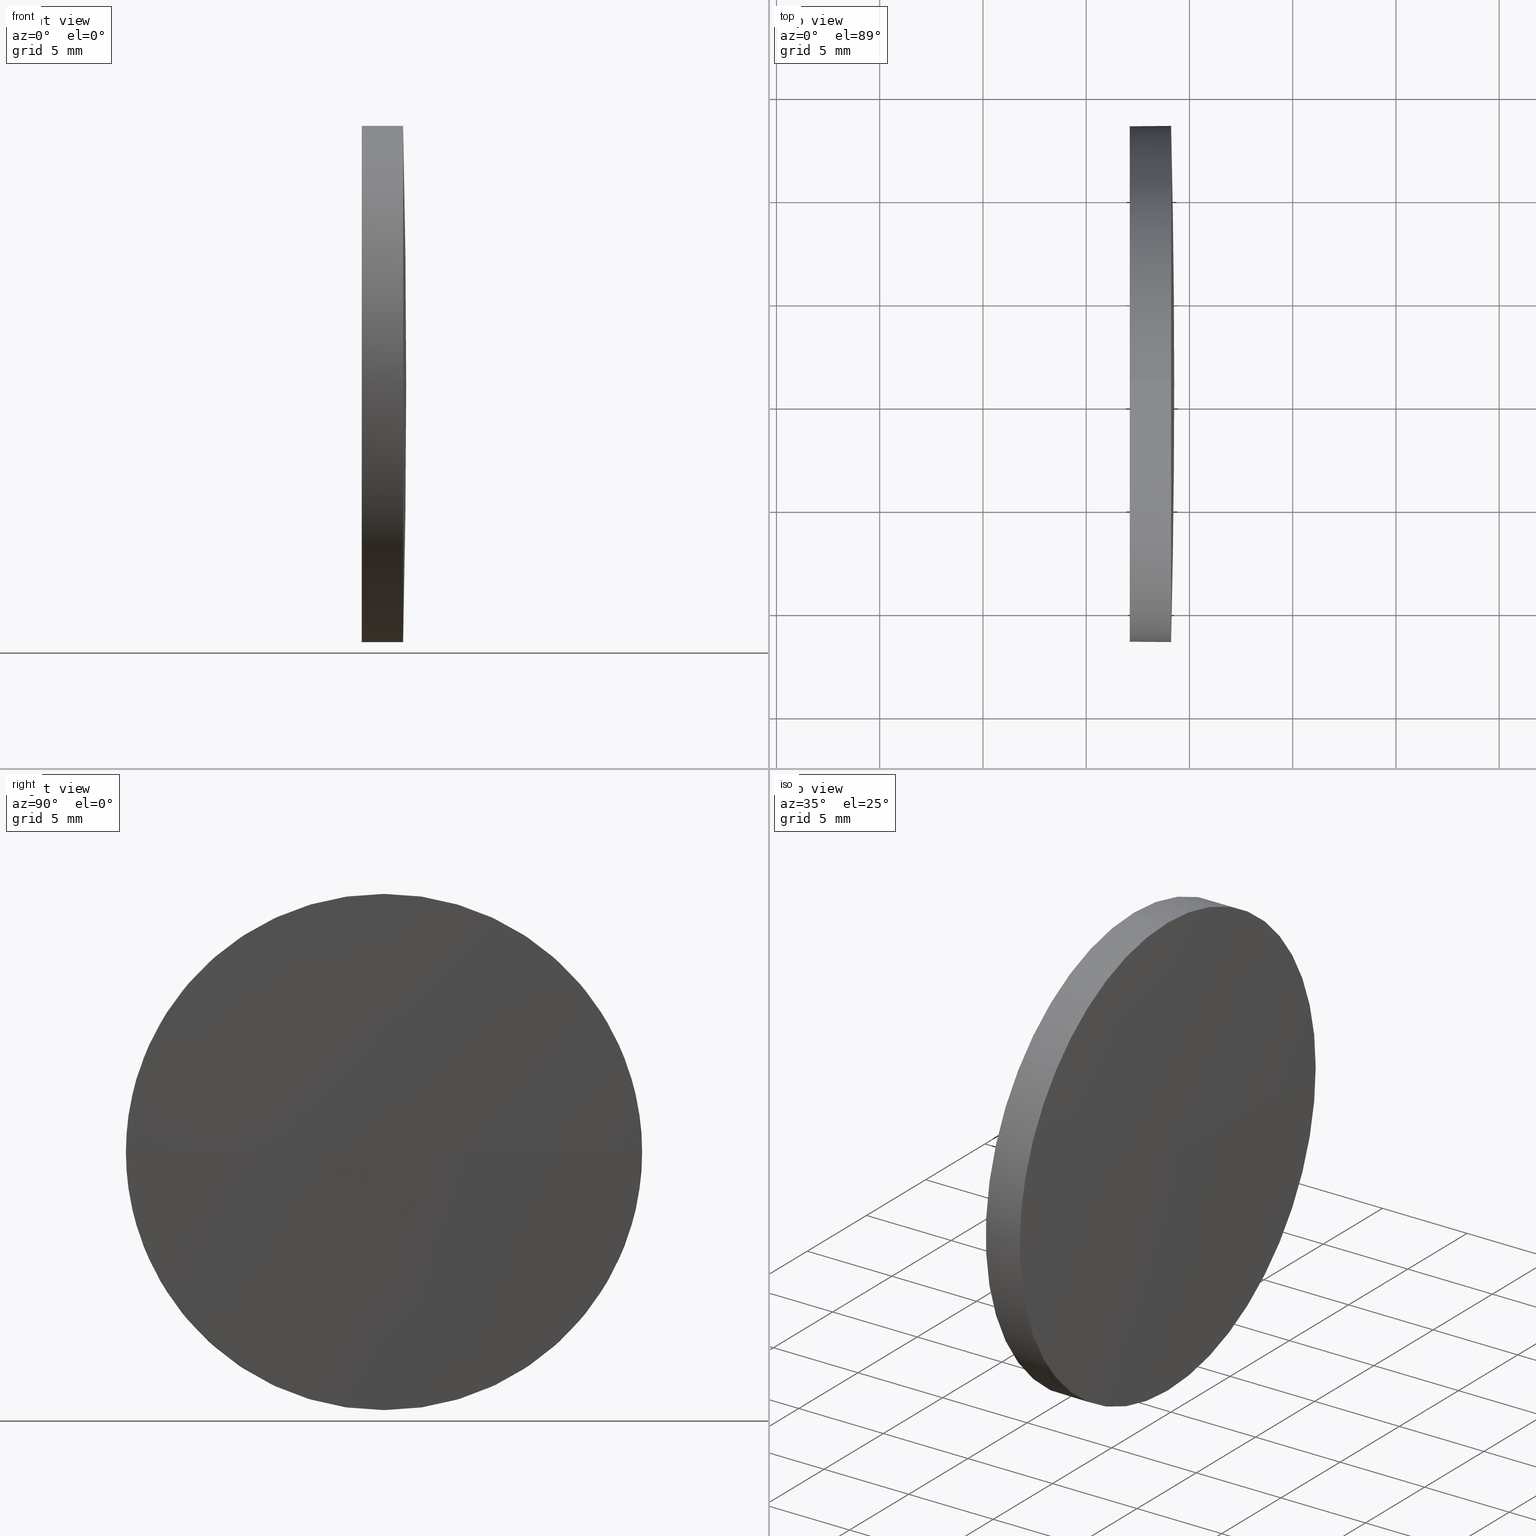
[diagram: canonical four-view strip — front | top / right | iso, engineering-drawing reading convention]
A machine part, canonical four-view strip (front | top / right | iso — engineering-drawing reading convention). The complete STEP part file that produces these views, byte-faithful:
ISO-10303-21;
HEADER;
FILE_DESCRIPTION (( 'STEP AP214' ),
    '1' );
FILE_NAME ('100140.STEP',
    '2019-05-15T05:31:38',
    ( '' ),
    ( '' ),
    'SwSTEP 2.0',
    'SolidWorks 2016',
    '' );
FILE_SCHEMA (( 'AUTOMOTIVE_DESIGN' ));
ENDSEC;

DATA;
#1 = PRESENTATION_STYLE_ASSIGNMENT (( #94 ) ) ;
#2 = DIRECTION ( 'NONE',  ( -1.000000000000000000, -0.0000000000000000000, -0.0000000000000000000 ) ) ;
#3 = AXIS2_PLACEMENT_3D ( 'NONE', #17, #56, #87 ) ;
#4 = PLANE ( 'NONE',  #3 ) ;
#5 =( NAMED_UNIT ( * ) PLANE_ANGLE_UNIT ( ) SI_UNIT ( $, .RADIAN. ) );
#6 = CYLINDRICAL_SURFACE ( 'NONE', #29, 12.50000000000000400 ) ;
#7 = ORIENTED_EDGE ( 'NONE', *, *, #98, .F. ) ;
#8 = DIRECTION ( 'NONE',  ( 0.0000000000000000000, 1.000000000000000000, 0.0000000000000000000 ) ) ;
#9 = CIRCLE ( 'NONE', #25, 12.50000000000000400 ) ;
#10 = VERTEX_POINT ( 'NONE', #57 ) ;
#11 = AXIS2_PLACEMENT_3D ( 'NONE', #118, #175, #129 ) ;
#12 = PRESENTATION_LAYER_ASSIGNMENT (  '', '', ( #135 ) ) ;
#13 = FACE_OUTER_BOUND ( 'NONE', #14, .T. ) ;
#14 = EDGE_LOOP ( 'NONE', ( #101, #180 ) ) ;
#15 = FACE_OUTER_BOUND ( 'NONE', #60, .T. ) ;
#16 = SURFACE_SIDE_STYLE ('',( #106 ) ) ;
#17 = CARTESIAN_POINT ( 'NONE',  ( 462.1129067286656200, 60.99120596055025300, 0.0000000000000000000 ) ) ;
#18 = ORIENTED_EDGE ( 'NONE', *, *, #51, .F. ) ;
#19 = CARTESIAN_POINT ( 'NONE',  ( -56.64542660467248000, 60.99120596054969900, 0.0000000000000000000 ) ) ;
#20 = CARTESIAN_POINT ( 'NONE',  ( 459.7472908259046600, 60.99120596055025300, 12.50000000000000400 ) ) ;
#21 = CARTESIAN_POINT ( 'NONE',  ( 464.1129067286656200, 60.99120596055025300, -12.50000000000000400 ) ) ;
#22 = APPLICATION_CONTEXT ( 'automotive_design' ) ;
#23 = EDGE_CURVE ( 'NONE', #31, #108, #174, .T. ) ;
#24 = FACE_OUTER_BOUND ( 'NONE', #111, .T. ) ;
#25 = AXIS2_PLACEMENT_3D ( 'NONE', #128, #161, #74 ) ;
#26 = UNCERTAINTY_MEASURE_WITH_UNIT (LENGTH_MEASURE( 1.000000000000000100E-005 ), #32, 'distance_accuracy_value', 'NONE');
#27 = ORIENTED_EDGE ( 'NONE', *, *, #61, .T. ) ;
#28 = DIRECTION ( 'NONE',  ( 0.0000000000000000000, 0.0000000000000000000, 1.000000000000000000 ) ) ;
#29 = AXIS2_PLACEMENT_3D ( 'NONE', #127, #130, #28 ) ;
#30 = DIRECTION ( 'NONE',  ( -0.0000000000000000000, 0.0000000000000000000, 1.000000000000000000 ) ) ;
#31 = VERTEX_POINT ( 'NONE', #115 ) ;
#32 =( LENGTH_UNIT ( ) NAMED_UNIT ( * ) SI_UNIT ( .MILLI., .METRE. ) );
#33 = CARTESIAN_POINT ( 'NONE',  ( 464.1129067286656200, 60.99120596055025300, 12.50000000000000400 ) ) ;
#34 = APPLICATION_CONTEXT ( 'automotive_design' ) ;
#35 = SURFACE_SIDE_STYLE ('',( #124 ) ) ;
#36 = DIRECTION ( 'NONE',  ( 1.000000000000000000, 0.0000000000000000000, 0.0000000000000000000 ) ) ;
#37 = VERTEX_POINT ( 'NONE', #73 ) ;
#38 = ADVANCED_FACE ( 'NONE', ( #54 ), #66, .T. ) ;
#39 = ORIENTED_EDGE ( 'NONE', *, *, #167, .T. ) ;
#40 = AXIS2_PLACEMENT_3D ( 'NONE', #164, #90, #121 ) ;
#41 = MECHANICAL_DESIGN_GEOMETRIC_PRESENTATION_REPRESENTATION (  '', ( #135 ), #185 ) ;
#42 = DIRECTION ( 'NONE',  ( 0.0000000000000000000, 1.224646799147353200E-016, -1.000000000000000000 ) ) ;
#43 = CIRCLE ( 'NONE', #93, 520.9083333333380800 ) ;
#44 = FILL_AREA_STYLE_COLOUR ( '', #157 ) ;
#45 = PRODUCT_DEFINITION_CONTEXT ( 'detailed design', #34, 'design' ) ;
#46 = DIRECTION ( 'NONE',  ( -1.000000000000000000, -0.0000000000000000000, -0.0000000000000000000 ) ) ;
#47 = CIRCLE ( 'NONE', #181, 12.50000000000000400 ) ;
#48 = DIRECTION ( 'NONE',  ( 0.0000000000000000000, 0.0000000000000000000, 1.000000000000000000 ) ) ;
#49 = CARTESIAN_POINT ( 'NONE',  ( 0.0000000000000000000, 0.0000000000000000000, 0.0000000000000000000 ) ) ;
#50 = MANIFOLD_SOLID_BREP ( '��ת1', #67 ) ;
#51 = EDGE_CURVE ( 'NONE', #108, #152, #47, .T. ) ;
#52 = VECTOR ( 'NONE', #46, 1000.000000000000000 ) ;
#53 = VECTOR ( 'NONE', #162, 1000.000000000000000 ) ;
#54 = FACE_OUTER_BOUND ( 'NONE', #155, .T. ) ;
#55 = AXIS2_PLACEMENT_3D ( 'NONE', #100, #99, #172 ) ;
#56 = DIRECTION ( 'NONE',  ( 1.000000000000000000, 0.0000000000000000000, 0.0000000000000000000 ) ) ;
#57 = CARTESIAN_POINT ( 'NONE',  ( 464.1129067286656200, 73.49120596054936500, 0.0000000000000000000 ) ) ;
#58 = CARTESIAN_POINT ( 'NONE',  ( 462.1129067286656200, 60.99120596055025300, -12.50000000000000400 ) ) ;
#59 = CARTESIAN_POINT ( 'NONE',  ( 464.1129067286656200, 48.49120596055059500, -1.530808498934081900E-015 ) ) ;
#60 = EDGE_LOOP ( 'NONE', ( #39, #163, #95, #123, #80 ) ) ;
#61 = EDGE_CURVE ( 'NONE', #31, #10, #43, .T. ) ;
#62 = DIRECTION ( 'NONE',  ( -0.0000000000000000000, 0.0000000000000000000, -1.000000000000000000 ) ) ;
#63 = DIRECTION ( 'NONE',  ( 0.0000000000000000000, 0.0000000000000000000, 1.000000000000000000 ) ) ;
#64 = APPLICATION_PROTOCOL_DEFINITION ( 'draft international standard', 'automotive_design', 1998, #22 ) ;
#65 =( NAMED_UNIT ( * ) PLANE_ANGLE_UNIT ( ) SI_UNIT ( $, .RADIAN. ) );
#66 = SPHERICAL_SURFACE ( 'NONE', #55, 520.9083333333380800 ) ;
#67 = CLOSED_SHELL ( 'NONE', ( #125, #154, #38, #70, #84 ) ) ;
#68 = CIRCLE ( 'NONE', #40, 12.50000000000000400 ) ;
#69 = PRODUCT_DEFINITION_SHAPE ( 'NONE', 'NONE',  #116 ) ;
#70 = ADVANCED_FACE ( 'NONE', ( #24 ), #6, .T. ) ;
#71 = CARTESIAN_POINT ( 'NONE',  ( 459.7472908259046600, 60.99120596055025300, -12.50000000000000400 ) ) ;
#72 = ORIENTED_EDGE ( 'NONE', *, *, #167, .F. ) ;
#73 = CARTESIAN_POINT ( 'NONE',  ( 462.1129067286656200, 60.99120596055025300, 12.50000000000000400 ) ) ;
#74 = DIRECTION ( 'NONE',  ( 0.0000000000000000000, 0.0000000000000000000, 1.000000000000000000 ) ) ;
#75 = PRODUCT_CONTEXT ( 'NONE', #22, 'mechanical' ) ;
#76 = CARTESIAN_POINT ( 'NONE',  ( 462.1129067286656200, 60.99120596055025300, 0.0000000000000000000 ) ) ;
#77 = DIRECTION ( 'NONE',  ( 0.0000000000000000000, 0.0000000000000000000, 1.000000000000000000 ) ) ;
#78 = AXIS2_PLACEMENT_3D ( 'NONE', #49, #146, #36 ) ;
#79 = LINE ( 'NONE', #71, #52 ) ;
#80 = ORIENTED_EDGE ( 'NONE', *, *, #81, .T. ) ;
#81 = EDGE_CURVE ( 'NONE', #152, #10, #156, .T. ) ;
#82 = ORIENTED_EDGE ( 'NONE', *, *, #89, .F. ) ;
#83 = SHAPE_DEFINITION_REPRESENTATION ( #69, #126 ) ;
#84 = ADVANCED_FACE ( 'NONE', ( #13 ), #4, .F. ) ;
#85 =( NAMED_UNIT ( * ) SI_UNIT ( $, .STERADIAN. ) SOLID_ANGLE_UNIT ( ) );
#86 = AXIS2_PLACEMENT_3D ( 'NONE', #76, #178, #77 ) ;
#87 = DIRECTION ( 'NONE',  ( 0.0000000000000000000, 0.0000000000000000000, -1.000000000000000000 ) ) ;
#88 = APPLICATION_PROTOCOL_DEFINITION ( 'draft international standard', 'automotive_design', 1998, #34 ) ;
#89 = EDGE_CURVE ( 'NONE', #141, #114, #79, .T. ) ;
#90 = DIRECTION ( 'NONE',  ( -1.000000000000000000, -0.0000000000000000000, -0.0000000000000000000 ) ) ;
#91 = DIRECTION ( 'NONE',  ( -1.000000000000000000, -0.0000000000000000000, -0.0000000000000000000 ) ) ;
#92 = COLOUR_RGB ( '',1.000000000000000000, 1.000000000000000000, 1.000000000000000000 ) ;
#93 = AXIS2_PLACEMENT_3D ( 'NONE', #19, #30, #173 ) ;
#94 = SURFACE_STYLE_USAGE ( .BOTH. , #35 ) ;
#95 = ORIENTED_EDGE ( 'NONE', *, *, #120, .F. ) ;
#96 = FACE_OUTER_BOUND ( 'NONE', #142, .T. ) ;
#97 = AXIS2_PLACEMENT_3D ( 'NONE', #136, #91, #48 ) ;
#98 = EDGE_CURVE ( 'NONE', #141, #108, #9, .T. ) ;
#99 = DIRECTION ( 'NONE',  ( -0.0000000000000000000, 0.0000000000000000000, -1.000000000000000000 ) ) ;
#100 = CARTESIAN_POINT ( 'NONE',  ( -56.64542660467248000, 60.99120596054969900, 0.0000000000000000000 ) ) ;
#101 = ORIENTED_EDGE ( 'NONE', *, *, #120, .T. ) ;
#102 = FILL_AREA_STYLE ('',( #149 ) ) ;
#103 = CARTESIAN_POINT ( 'NONE',  ( -56.64542660467248000, 60.99120596054969900, 0.0000000000000000000 ) ) ;
#104 =( NAMED_UNIT ( * ) SI_UNIT ( $, .STERADIAN. ) SOLID_ANGLE_UNIT ( ) );
#105 =( NAMED_UNIT ( * ) PLANE_ANGLE_UNIT ( ) SI_UNIT ( $, .RADIAN. ) );
#106 = SURFACE_STYLE_FILL_AREA ( #143 ) ;
#107 = PRESENTATION_LAYER_ASSIGNMENT (  '', '', ( #137 ) ) ;
#108 = VERTEX_POINT ( 'NONE', #59 ) ;
#109 = AXIS2_PLACEMENT_3D ( 'NONE', #133, #62, #8 ) ;
#110 = EDGE_CURVE ( 'NONE', #114, #37, #68, .T. ) ;
#111 = EDGE_LOOP ( 'NONE', ( #82, #131, #140, #112, #184 ) ) ;
#112 = ORIENTED_EDGE ( 'NONE', *, *, #179, .T. ) ;
#113 = CARTESIAN_POINT ( 'NONE',  ( 464.1129067286656200, 60.99120596055025300, 0.0000000000000000000 ) ) ;
#114 = VERTEX_POINT ( 'NONE', #58 ) ;
#115 = CARTESIAN_POINT ( 'NONE',  ( 464.2629067286656000, 60.99120596054973500, 0.0000000000000000000 ) ) ;
#116 = PRODUCT_DEFINITION ( 'δ֪', '', #145, #45 ) ;
#117 = CIRCLE ( 'NONE', #97, 12.50000000000000400 ) ;
#118 = CARTESIAN_POINT ( 'NONE',  ( 464.1129067286656200, 60.99120596055025300, 0.0000000000000000000 ) ) ;
#119 = ORIENTED_EDGE ( 'NONE', *, *, #81, .F. ) ;
#120 = EDGE_CURVE ( 'NONE', #37, #114, #165, .T. ) ;
#121 = DIRECTION ( 'NONE',  ( 0.0000000000000000000, 0.0000000000000000000, 1.000000000000000000 ) ) ;
#122 =( LENGTH_UNIT ( ) NAMED_UNIT ( * ) SI_UNIT ( .MILLI., .METRE. ) );
#123 = ORIENTED_EDGE ( 'NONE', *, *, #179, .F. ) ;
#124 = SURFACE_STYLE_FILL_AREA ( #102 ) ;
#125 = ADVANCED_FACE ( 'NONE', ( #15 ), #139, .T. ) ;
#126 = ADVANCED_BREP_SHAPE_REPRESENTATION ( '100140', ( #50, #78 ), #132 ) ;
#127 = CARTESIAN_POINT ( 'NONE',  ( 459.7472908259046600, 60.99120596055025300, 0.0000000000000000000 ) ) ;
#128 = CARTESIAN_POINT ( 'NONE',  ( 464.1129067286656200, 60.99120596055025300, 0.0000000000000000000 ) ) ;
#129 = DIRECTION ( 'NONE',  ( 0.0000000000000000000, 0.0000000000000000000, 1.000000000000000000 ) ) ;
#130 = DIRECTION ( 'NONE',  ( -1.000000000000000000, -0.0000000000000000000, -0.0000000000000000000 ) ) ;
#131 = ORIENTED_EDGE ( 'NONE', *, *, #98, .T. ) ;
#132 =( GEOMETRIC_REPRESENTATION_CONTEXT ( 3 ) GLOBAL_UNCERTAINTY_ASSIGNED_CONTEXT ( ( #171 ) ) GLOBAL_UNIT_ASSIGNED_CONTEXT ( ( #144, #65, #104 ) ) REPRESENTATION_CONTEXT ( 'NONE', 'WORKASPACE' ) );
#133 = CARTESIAN_POINT ( 'NONE',  ( -56.64542660467248000, 60.99120596054969900, 0.0000000000000000000 ) ) ;
#134 = DIRECTION ( 'NONE',  ( -1.000000000000000000, -0.0000000000000000000, -0.0000000000000000000 ) ) ;
#135 = STYLED_ITEM ( 'NONE', ( #138 ), #50 ) ;
#136 = CARTESIAN_POINT ( 'NONE',  ( 464.1129067286656200, 60.99120596055025300, 0.0000000000000000000 ) ) ;
#137 = STYLED_ITEM ( 'NONE', ( #1 ), #126 ) ;
#138 = PRESENTATION_STYLE_ASSIGNMENT (( #160 ) ) ;
#139 = CYLINDRICAL_SURFACE ( 'NONE', #177, 12.50000000000000400 ) ;
#140 = ORIENTED_EDGE ( 'NONE', *, *, #51, .T. ) ;
#141 = VERTEX_POINT ( 'NONE', #21 ) ;
#142 = EDGE_LOOP ( 'NONE', ( #150, #182, #7, #72 ) ) ;
#143 = FILL_AREA_STYLE ('',( #44 ) ) ;
#144 =( LENGTH_UNIT ( ) NAMED_UNIT ( * ) SI_UNIT ( .MILLI., .METRE. ) );
#145 = PRODUCT_DEFINITION_FORMATION_WITH_SPECIFIED_SOURCE ( '�κ�', '', #169, .NOT_KNOWN. ) ;
#146 = DIRECTION ( 'NONE',  ( 0.0000000000000000000, 0.0000000000000000000, 1.000000000000000000 ) ) ;
#147 = CARTESIAN_POINT ( 'NONE',  ( 459.7472908259046600, 60.99120596055025300, 0.0000000000000000000 ) ) ;
#148 =( NAMED_UNIT ( * ) SI_UNIT ( $, .STERADIAN. ) SOLID_ANGLE_UNIT ( ) );
#149 = FILL_AREA_STYLE_COLOUR ( '', #92 ) ;
#150 = ORIENTED_EDGE ( 'NONE', *, *, #61, .F. ) ;
#151 = SPHERICAL_SURFACE ( 'NONE', #109, 520.9083333333380800 ) ;
#152 = VERTEX_POINT ( 'NONE', #33 ) ;
#153 = UNCERTAINTY_MEASURE_WITH_UNIT (LENGTH_MEASURE( 1.000000000000000100E-005 ), #122, 'distance_accuracy_value', 'NONE');
#154 = ADVANCED_FACE ( 'NONE', ( #96 ), #151, .T. ) ;
#155 = EDGE_LOOP ( 'NONE', ( #166, #27, #119, #18 ) ) ;
#156 = CIRCLE ( 'NONE', #11, 12.50000000000000400 ) ;
#157 = COLOUR_RGB ( '',1.000000000000000000, 1.000000000000000000, 1.000000000000000000 ) ;
#158 = AXIS2_PLACEMENT_3D ( 'NONE', #103, #42, #159 ) ;
#159 = DIRECTION ( 'NONE',  ( 0.0000000000000000000, 1.000000000000000000, 1.224646799147353200E-016 ) ) ;
#160 = SURFACE_STYLE_USAGE ( .BOTH. , #16 ) ;
#161 = DIRECTION ( 'NONE',  ( -1.000000000000000000, -0.0000000000000000000, -0.0000000000000000000 ) ) ;
#162 = DIRECTION ( 'NONE',  ( -1.000000000000000000, -0.0000000000000000000, -0.0000000000000000000 ) ) ;
#163 = ORIENTED_EDGE ( 'NONE', *, *, #89, .T. ) ;
#164 = CARTESIAN_POINT ( 'NONE',  ( 462.1129067286656200, 60.99120596055025300, 0.0000000000000000000 ) ) ;
#165 = CIRCLE ( 'NONE', #86, 12.50000000000000400 ) ;
#166 = ORIENTED_EDGE ( 'NONE', *, *, #23, .F. ) ;
#167 = EDGE_CURVE ( 'NONE', #10, #141, #117, .T. ) ;
#168 = MECHANICAL_DESIGN_GEOMETRIC_PRESENTATION_REPRESENTATION (  '', ( #137 ), #186 ) ;
#169 = PRODUCT ( '100140', '100140', '', ( #75 ) ) ;
#170 = LINE ( 'NONE', #20, #53 ) ;
#171 = UNCERTAINTY_MEASURE_WITH_UNIT (LENGTH_MEASURE( 1.000000000000000100E-005 ), #144, 'distance_accuracy_value', 'NONE');
#172 = DIRECTION ( 'NONE',  ( 0.0000000000000000000, 1.000000000000000000, 0.0000000000000000000 ) ) ;
#173 = DIRECTION ( 'NONE',  ( 1.000000000000000000, 0.0000000000000000000, 0.0000000000000000000 ) ) ;
#174 = CIRCLE ( 'NONE', #158, 520.9083333333380800 ) ;
#175 = DIRECTION ( 'NONE',  ( -1.000000000000000000, -0.0000000000000000000, -0.0000000000000000000 ) ) ;
#176 = DIRECTION ( 'NONE',  ( 0.0000000000000000000, 0.0000000000000000000, 1.000000000000000000 ) ) ;
#177 = AXIS2_PLACEMENT_3D ( 'NONE', #147, #134, #63 ) ;
#178 = DIRECTION ( 'NONE',  ( -1.000000000000000000, -0.0000000000000000000, -0.0000000000000000000 ) ) ;
#179 = EDGE_CURVE ( 'NONE', #152, #37, #170, .T. ) ;
#180 = ORIENTED_EDGE ( 'NONE', *, *, #110, .T. ) ;
#181 = AXIS2_PLACEMENT_3D ( 'NONE', #113, #2, #176 ) ;
#182 = ORIENTED_EDGE ( 'NONE', *, *, #23, .T. ) ;
#183 = PRODUCT_RELATED_PRODUCT_CATEGORY ( 'part', '', ( #169 ) ) ;
#184 = ORIENTED_EDGE ( 'NONE', *, *, #110, .F. ) ;
#185 =( GEOMETRIC_REPRESENTATION_CONTEXT ( 3 ) GLOBAL_UNCERTAINTY_ASSIGNED_CONTEXT ( ( #26 ) ) GLOBAL_UNIT_ASSIGNED_CONTEXT ( ( #32, #5, #85 ) ) REPRESENTATION_CONTEXT ( 'NONE', 'WORKASPACE' ) );
#186 =( GEOMETRIC_REPRESENTATION_CONTEXT ( 3 ) GLOBAL_UNCERTAINTY_ASSIGNED_CONTEXT ( ( #153 ) ) GLOBAL_UNIT_ASSIGNED_CONTEXT ( ( #122, #105, #148 ) ) REPRESENTATION_CONTEXT ( 'NONE', 'WORKASPACE' ) );
ENDSEC;
END-ISO-10303-21;
